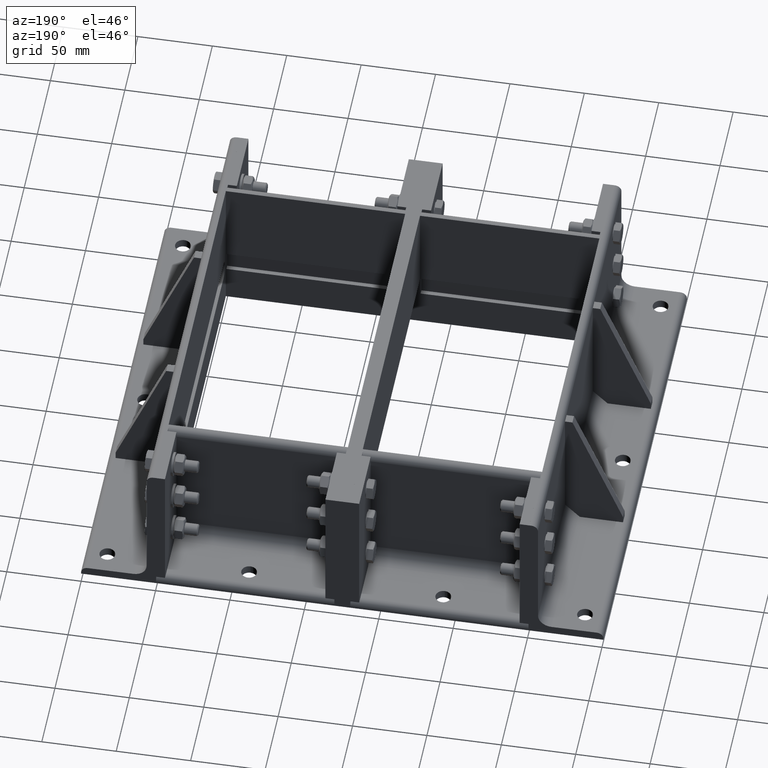
[diagram: clean part render]
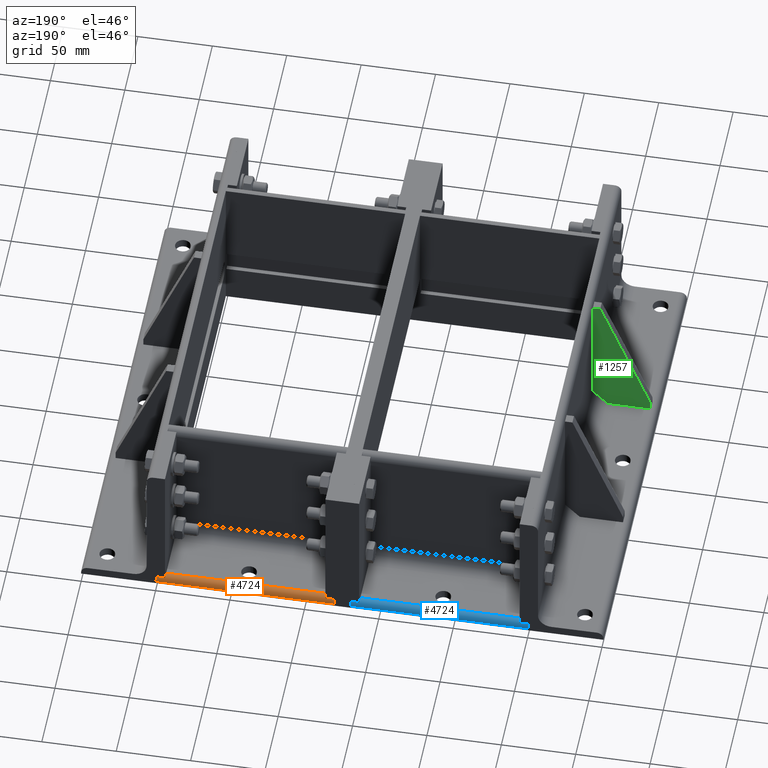
[diagram: same view with three faces highlighted in distinct colors, each labeled with its STEP entity id]
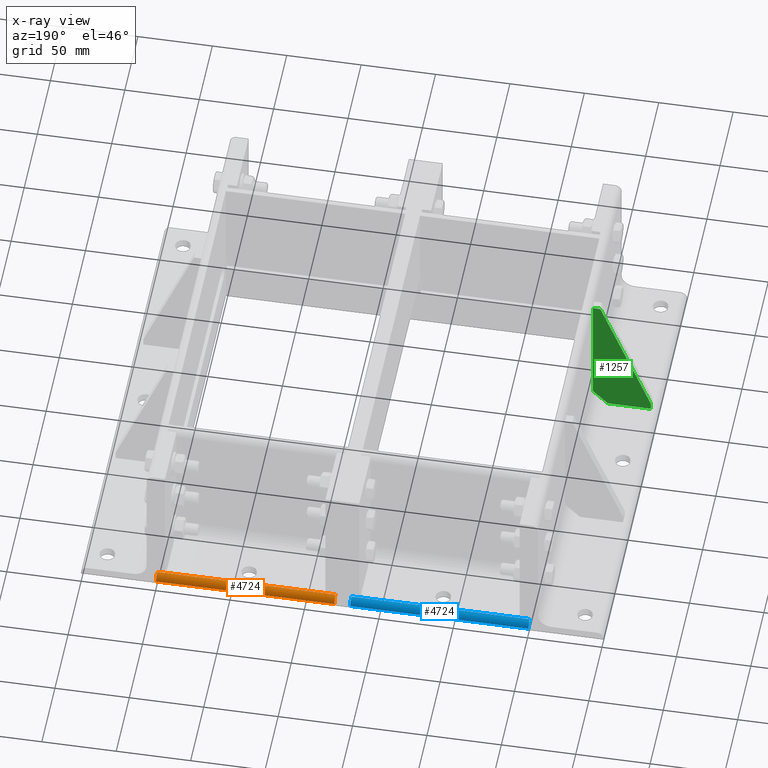
[diagram: x-ray of the same camera — body ghosted, the three highlighted faces saturated]
A machine part, auxiliary view with three faces highlighted in distinct colors.
The next image is the same camera in x-ray (body ghosted, the three faces saturated) — at least one of them is partly hidden behind the body in this view.
Their STEP definitions:

[orange] entity #4724 — the highlighted cylindrical surface (edge-blend (fillet) strip) has radius 4.5 mm, axis along (-1, 0, -0).
#4575=CARTESIAN_POINT('',(39.5,119.80000000000001,-1.208471E-014));
#4576=VERTEX_POINT('',#4575);
#4583=CARTESIAN_POINT('',(44.0,119.80000000000001,-4.500000000000012));
#4584=VERTEX_POINT('',#4583);
#4585=CARTESIAN_POINT('',(39.5,119.80000000000001,-4.500000000000012));
#4586=DIRECTION('',(0.0,-1.0,0.0));
#4587=DIRECTION('',(0.707106781186548,0.0,0.707106781186547));
#4588=AXIS2_PLACEMENT_3D('',#4585,#4586,#4587);
#4589=CIRCLE('',#4588,4.5);
#4590=EDGE_CURVE('',#4584,#4576,#4589,.T.);
#4679=CARTESIAN_POINT('',(39.5,0.0,-1.208471E-014));
#4680=VERTEX_POINT('',#4679);
#4687=CARTESIAN_POINT('',(39.5,119.80000000000001,-1.221245E-014));
#4688=DIRECTION('',(0.0,-1.0,0.0));
#4689=VECTOR('',#4688,119.80000000000001);
#4690=LINE('',#4687,#4689);
#4691=EDGE_CURVE('',#4576,#4680,#4690,.T.);
#4700=CARTESIAN_POINT('',(39.5,0.0,-4.500000000000012));
#4701=DIRECTION('',(0.0,1.0,0.0));
#4702=DIRECTION('',(0.707106781186548,0.0,0.707106781186547));
#4703=AXIS2_PLACEMENT_3D('',#4700,#4701,#4702);
#4704=CYLINDRICAL_SURFACE('',#4703,4.5);
#4705=ORIENTED_EDGE('',*,*,#4590,.T.);
#4706=ORIENTED_EDGE('',*,*,#4691,.T.);
#4707=CARTESIAN_POINT('',(44.0,0.0,-4.500000000000012));
#4708=VERTEX_POINT('',#4707);
#4709=CARTESIAN_POINT('',(39.5,0.0,-4.500000000000012));
#4710=DIRECTION('',(0.0,1.0,0.0));
#4711=DIRECTION('',(0.707106781186548,0.0,0.707106781186547));
#4712=AXIS2_PLACEMENT_3D('',#4709,#4710,#4711);
#4713=CIRCLE('',#4712,4.5);
#4714=EDGE_CURVE('',#4680,#4708,#4713,.T.);
#4715=ORIENTED_EDGE('',*,*,#4714,.T.);
#4716=CARTESIAN_POINT('',(44.0,0.0,-4.500000000000012));
#4717=DIRECTION('',(0.0,1.0,0.0));
#4718=VECTOR('',#4717,119.80000000000001);
#4719=LINE('',#4716,#4718);
#4720=EDGE_CURVE('',#4708,#4584,#4719,.T.);
#4721=ORIENTED_EDGE('',*,*,#4720,.T.);
#4722=EDGE_LOOP('',(#4705,#4706,#4715,#4721));
#4723=FACE_OUTER_BOUND('',#4722,.T.);
#4724=ADVANCED_FACE('',(#4723),#4704,.T.);

[blue] entity #4724 — the highlighted cylindrical surface (edge-blend (fillet) strip) has radius 4.5 mm, axis along (-1, 0, -0).
#4575=CARTESIAN_POINT('',(39.5,119.80000000000001,-1.208471E-014));
#4576=VERTEX_POINT('',#4575);
#4583=CARTESIAN_POINT('',(44.0,119.80000000000001,-4.500000000000012));
#4584=VERTEX_POINT('',#4583);
#4585=CARTESIAN_POINT('',(39.5,119.80000000000001,-4.500000000000012));
#4586=DIRECTION('',(0.0,-1.0,0.0));
#4587=DIRECTION('',(0.707106781186548,0.0,0.707106781186547));
#4588=AXIS2_PLACEMENT_3D('',#4585,#4586,#4587);
#4589=CIRCLE('',#4588,4.5);
#4590=EDGE_CURVE('',#4584,#4576,#4589,.T.);
#4679=CARTESIAN_POINT('',(39.5,0.0,-1.208471E-014));
#4680=VERTEX_POINT('',#4679);
#4687=CARTESIAN_POINT('',(39.5,119.80000000000001,-1.221245E-014));
#4688=DIRECTION('',(0.0,-1.0,0.0));
#4689=VECTOR('',#4688,119.80000000000001);
#4690=LINE('',#4687,#4689);
#4691=EDGE_CURVE('',#4576,#4680,#4690,.T.);
#4700=CARTESIAN_POINT('',(39.5,0.0,-4.500000000000012));
#4701=DIRECTION('',(0.0,1.0,0.0));
#4702=DIRECTION('',(0.707106781186548,0.0,0.707106781186547));
#4703=AXIS2_PLACEMENT_3D('',#4700,#4701,#4702);
#4704=CYLINDRICAL_SURFACE('',#4703,4.5);
#4705=ORIENTED_EDGE('',*,*,#4590,.T.);
#4706=ORIENTED_EDGE('',*,*,#4691,.T.);
#4707=CARTESIAN_POINT('',(44.0,0.0,-4.500000000000012));
#4708=VERTEX_POINT('',#4707);
#4709=CARTESIAN_POINT('',(39.5,0.0,-4.500000000000012));
#4710=DIRECTION('',(0.0,1.0,0.0));
#4711=DIRECTION('',(0.707106781186548,0.0,0.707106781186547));
#4712=AXIS2_PLACEMENT_3D('',#4709,#4710,#4711);
#4713=CIRCLE('',#4712,4.5);
#4714=EDGE_CURVE('',#4680,#4708,#4713,.T.);
#4715=ORIENTED_EDGE('',*,*,#4714,.T.);
#4716=CARTESIAN_POINT('',(44.0,0.0,-4.500000000000012));
#4717=DIRECTION('',(0.0,1.0,0.0));
#4718=VECTOR('',#4717,119.80000000000001);
#4719=LINE('',#4716,#4718);
#4720=EDGE_CURVE('',#4708,#4584,#4719,.T.);
#4721=ORIENTED_EDGE('',*,*,#4720,.T.);
#4722=EDGE_LOOP('',(#4705,#4706,#4715,#4721));
#4723=FACE_OUTER_BOUND('',#4722,.T.);
#4724=ADVANCED_FACE('',(#4723),#4704,.T.);

[green] entity #1257 — the highlighted planar face has unit normal (-0, -1, -0).
#1049=CARTESIAN_POINT('',(-10.0,6.000000000000001,0.0));
#1050=VERTEX_POINT('',#1049);
#1051=CARTESIAN_POINT('',(0.0,6.000000000000001,10.0));
#1052=VERTEX_POINT('',#1051);
#1053=CARTESIAN_POINT('',(-10.000000000000005,6.000000000000001,0.0));
#1054=DIRECTION('',(0.707106781186548,0.0,0.707106781186548));
#1055=VECTOR('',#1054,14.142135623730953);
#1056=LINE('',#1053,#1055);
#1057=EDGE_CURVE('',#1050,#1052,#1056,.T.);
#1137=CARTESIAN_POINT('',(0.0,6.000000000000001,89.0));
#1138=VERTEX_POINT('',#1137);
#1139=CARTESIAN_POINT('',(0.0,6.000000000000001,89.0));
#1140=DIRECTION('',(0.0,0.0,-1.0));
#1141=VECTOR('',#1140,79.0);
#1142=LINE('',#1139,#1141);
#1143=EDGE_CURVE('',#1138,#1052,#1142,.T.);
#1162=CARTESIAN_POINT('',(-5.0,6.000000000000001,89.0));
#1163=VERTEX_POINT('',#1162);
#1164=CARTESIAN_POINT('',(-5.0,6.000000000000001,89.0));
#1165=DIRECTION('',(1.0,0.0,0.0));
#1166=VECTOR('',#1165,5.0);
#1167=LINE('',#1164,#1166);
#1168=EDGE_CURVE('',#1163,#1138,#1167,.T.);
#1186=CARTESIAN_POINT('',(-39.0,6.000000000000001,5.0));
#1187=VERTEX_POINT('',#1186);
#1188=CARTESIAN_POINT('',(-39.000000000000007,6.000000000000001,5.0));
#1189=DIRECTION('',(0.375192757733183,0.0,0.926946813223158));
#1190=VECTOR('',#1189,90.620086073673534);
#1191=LINE('',#1188,#1190);
#1192=EDGE_CURVE('',#1187,#1163,#1191,.T.);
#1210=CARTESIAN_POINT('',(-39.0,6.000000000000001,0.0));
#1211=VERTEX_POINT('',#1210);
#1212=CARTESIAN_POINT('',(-39.0,6.000000000000001,0.0));
#1213=DIRECTION('',(0.0,0.0,1.0));
#1214=VECTOR('',#1213,5.0);
#1215=LINE('',#1212,#1214);
#1216=EDGE_CURVE('',#1211,#1187,#1215,.T.);
#1235=CARTESIAN_POINT('',(-9.999999999999996,6.000000000000001,0.0));
#1236=DIRECTION('',(-1.0,0.0,0.0));
#1237=VECTOR('',#1236,29.000000000000004);
#1238=LINE('',#1235,#1237);
#1239=EDGE_CURVE('',#1050,#1211,#1238,.T.);
#1244=CARTESIAN_POINT('',(-12.954425590874898,6.000000000000001,37.954425590874905));
#1245=DIRECTION('',(0.0,-1.0,0.0));
#1246=DIRECTION('',(0.0,0.0,-1.0));
#1247=AXIS2_PLACEMENT_3D('',#1244,#1245,#1246);
#1248=PLANE('',#1247);
#1249=ORIENTED_EDGE('',*,*,#1057,.F.);
#1250=ORIENTED_EDGE('',*,*,#1239,.T.);
#1251=ORIENTED_EDGE('',*,*,#1216,.T.);
#1252=ORIENTED_EDGE('',*,*,#1192,.T.);
#1253=ORIENTED_EDGE('',*,*,#1168,.T.);
#1254=ORIENTED_EDGE('',*,*,#1143,.T.);
#1255=EDGE_LOOP('',(#1249,#1250,#1251,#1252,#1253,#1254));
#1256=FACE_OUTER_BOUND('',#1255,.T.);
#1257=ADVANCED_FACE('',(#1256),#1248,.F.);